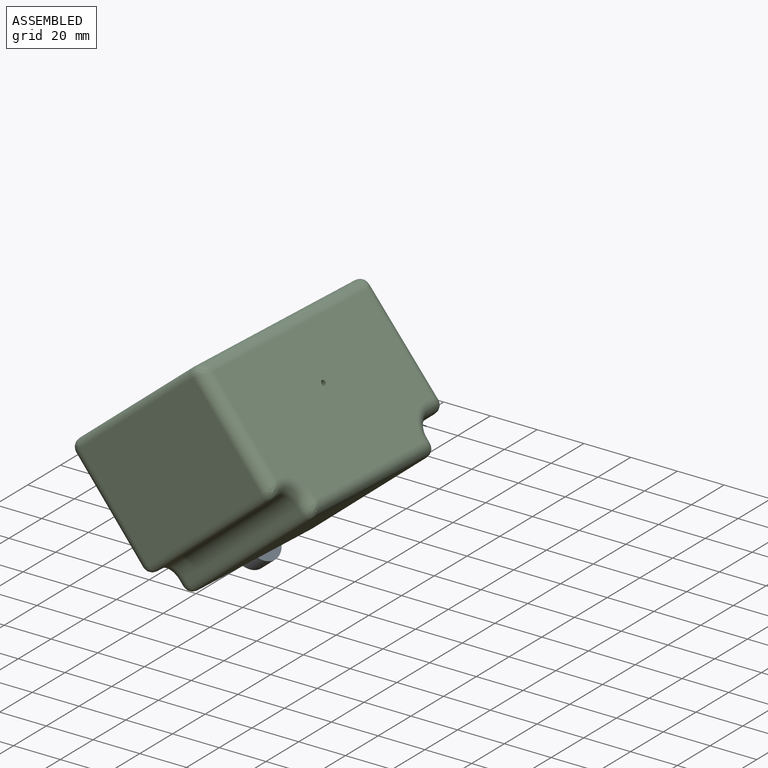
[diagram: assembled view]
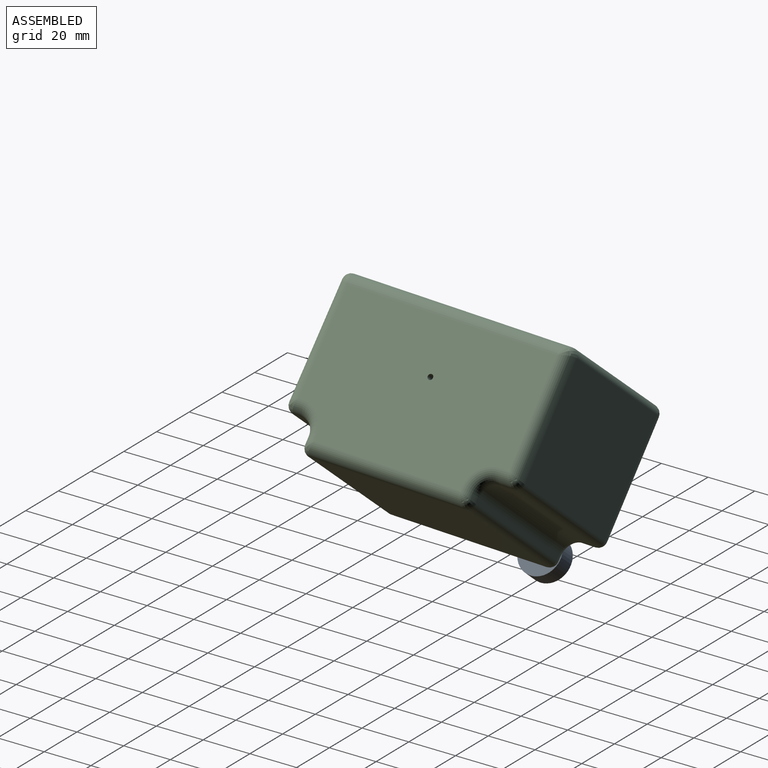
[diagram: assembled view, second angle]
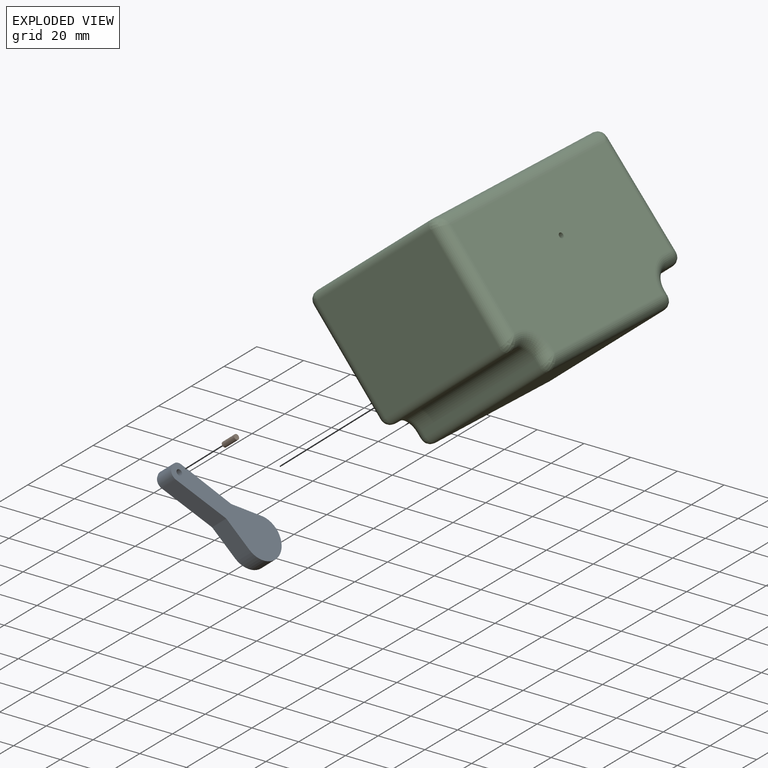
[diagram: exploded view]
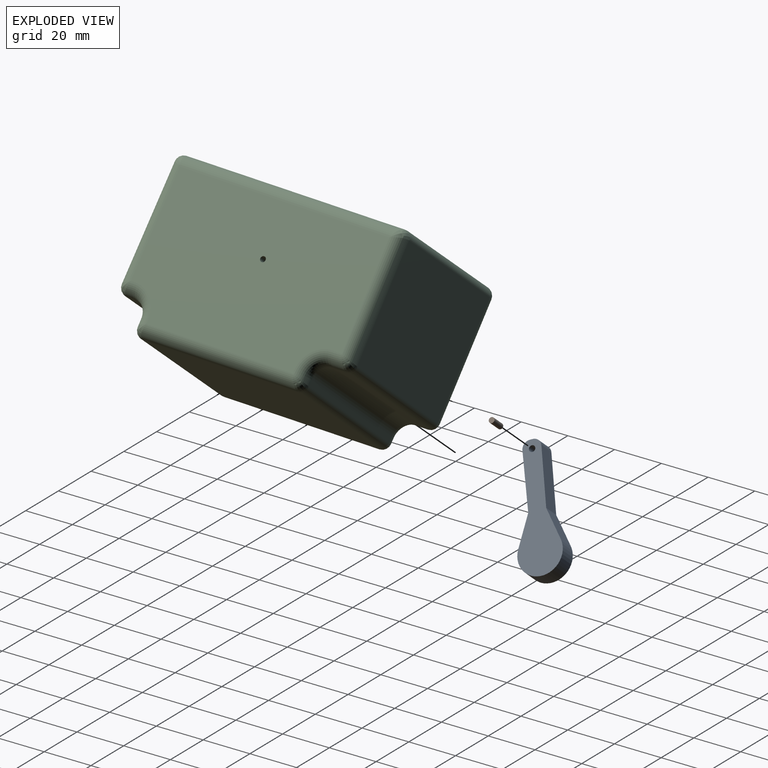
[diagram: exploded view, second angle]
ASSEMBLY  parts=3 mates=3
PART A: 11 faces, bbox 7.9x43.2x37.7 mm
  f0: plane 12.39x7.89mm, normal (0,-0.86,0.51), area 114mm2, adj f1,f7,f9,f10
  f1: plane 18.43x15.1mm, normal (0,-0.63,0.77), area 188mm2, adj f0,f2,f9,f10
  f2: cylinder r=3.17mm len=7.89mm, axis (-1,0,0), area 39.8mm2, adj f1,f3,f9,f10
  f3: plane 7.89x0.84mm, normal (0,-0.76,-0.65), area 8.7mm2, adj f2,f4,f9,f10
  f4: cylinder r=3.17mm len=7.89mm, axis (-1,0,0), area 39.4mm2, adj f3,f5,f9,f10
  f5: plane 18.22x15.42mm, normal (0,0.65,-0.76), area 188.4mm2, adj f4,f6,f9,f10
  f6: plane 12.87x7.89mm, normal (0,0.31,-0.95), area 106.8mm2, adj f5,f7,f9,f10
  f7: cylinder r=8.9mm len=17.37mm, axis (-1,0,0), area 265.8mm2, adj f0,f6,f9,f10
  f8: cylinder r=1.27mm len=7.89mm, axis (-1,0,0), area 63mm2, adj f9,f10
  f9: plane 43.19x37.73mm, normal (1,0,0), area 518.2mm2, adj f0,f1,f2,f3,f4,f5,f6,f7
  f10: plane 43.19x37.73mm, normal (-1,0,0), area 518.2mm2, adj f0,f1,f2,f3,f4,f5,f6,f7
PART B: 3 faces, bbox 6.9x2.3x2.3 mm
  f0: cylinder r=1.14mm len=6.86mm, axis (-1,0,0), area 49.3mm2, adj f1,f2
  f1: plane 2.29x2.29mm, normal (1,0,0), area 4.1mm2, adj f0
  f2: plane 2.29x2.29mm, normal (-1,0,0), area 4.1mm2, adj f0
PART C: 51 faces, bbox 73.5x66.8x102.2 mm
  f0: cylinder r=3.17mm len=63.37mm, axis (-1,0,0), area 316mm2, adj f1,f16,f33,f49
  f1: plane 67.5x63.37mm, normal (0,1,0), area 4277.1mm2, adj f0,f2,f31,f47
  f2: cylinder r=3.17mm len=63.37mm, axis (-1,0,0), area 316mm2, adj f1,f3,f29,f45
  f3: plane 63.37x2.61mm, normal (0,0,1), area 165.4mm2, adj f2,f4,f27,f43
  f4: cylinder r=6.35mm len=63.37mm, axis (-1,0,0), area 632mm2, adj f3,f5,f25,f41
  f5: plane 63.37x5.73mm, normal (0,1,0), area 363.2mm2, adj f4,f6,f23,f39
  f6: cylinder r=3.17mm len=63.37mm, axis (-1,0,0), area 319.5mm2, adj f5,f7,f21,f37
  f7: plane 63.37x48.27mm, normal (0,-0.02,1), area 3058.9mm2, adj f6,f8,f19,f35
  f8: cylinder r=3.17mm len=63.37mm, axis (-1,0,0), area 312.6mm2, adj f7,f9,f20,f36
  f9: plane 95x63.37mm, normal (0,-1,0), area 6019.9mm2, adj f8,f10,f22,f38
  f10: cylinder r=3.17mm len=63.37mm, axis (-1,0,0), area 316mm2, adj f9,f11,f24,f40
  f11: plane 63.37x47.8mm, normal (0,0,-1), area 3028.9mm2, adj f10,f12,f26,f42
  f12: cylinder r=3.17mm len=63.37mm, axis (-1,0,0), area 316mm2, adj f11,f13,f28,f44
  f13: plane 63.37x3.55mm, normal (0,1,0), area 224.7mm2, adj f12,f14,f30,f46
  f14: cylinder r=6.35mm len=63.37mm, axis (-1,0,0), area 632mm2, adj f13,f16,f32,f48
  f15: cylinder r=1.14mm len=73.53mm, axis (-1,0,0), area 528mm2, adj f17,f18
  f16: plane 63.37x3.08mm, normal (0,0,-1), area 194.9mm2, adj f0,f14,f34,f50
  f17: plane 91.98x56.59mm, normal (1,0,0), area 4891.2mm2, adj f15,f35,f38,f39,f41,f42,f43,f46
  f18: plane 91.98x56.59mm, normal (-1,0,0), area 4891.2mm2, adj f15,f19,f22,f23,f25,f26,f27,f30
  f19: cylinder r=5.08mm len=48.35mm, axis (0,-1,-0.02), area 374.2mm2, adj f7,f18,f20,f21
  f20: bspline ~6.13x5.08mm, area 26mm2, adj f8,f19,f22
  f21: bspline ~6.16x5.17mm, area 26.6mm2, adj f6,f19,f23
  f22: cylinder r=5.08mm len=95mm, axis (0,0,-1), area 747.1mm2, adj f9,f18,f20,f24
  f23: cylinder r=5.08mm len=5.73mm, axis (0,0,1), area 40.1mm2, adj f5,f18,f21,f25
  f24: bspline ~6.15x5.08mm, area 26.3mm2, adj f10,f22,f26
  f25: torus R=11.43mm, axis (1,0,0), area 102.7mm2, adj f4,f18,f23,f27
  f26: cylinder r=5.08mm len=47.8mm, axis (0,1,0), area 370.4mm2, adj f11,f18,f24,f28
  f27: cylinder r=5.08mm len=5.08mm, axis (0,-1,0), area 15.3mm2, adj f3,f18,f25,f29
  f28: bspline ~6.15x5.08mm, area 26.3mm2, adj f12,f26,f30
  f29: bspline ~6.15x5.08mm, area 26.3mm2, adj f2,f27,f31
  f30: cylinder r=5.08mm len=5.08mm, axis (0,0,1), area 22.8mm2, adj f13,f18,f28,f32
  f31: cylinder r=5.08mm len=67.5mm, axis (0,0,1), area 527.6mm2, adj f1,f18,f29,f33
  f32: torus R=11.43mm, axis (1,0,0), area 102.7mm2, adj f14,f18,f30,f34
  f33: bspline ~6.15x5.08mm, area 26.3mm2, adj f0,f31,f34
  f34: cylinder r=5.08mm len=5.08mm, axis (0,1,0), area 19mm2, adj f16,f18,f32,f33
  f35: cylinder r=5.08mm len=48.35mm, axis (0,1,0.02), area 374.2mm2, adj f7,f17,f36,f37
  f36: bspline ~6.13x5.08mm, area 26mm2, adj f8,f35,f38
  f37: bspline ~6.16x5.17mm, area 26.6mm2, adj f6,f35,f39
  f38: cylinder r=5.08mm len=95mm, axis (0,0,1), area 747.1mm2, adj f9,f17,f36,f40
  f39: cylinder r=5.08mm len=5.73mm, axis (0,0,-1), area 40.1mm2, adj f5,f17,f37,f41
  f40: bspline ~6.15x5.08mm, area 26.3mm2, adj f10,f38,f42
  f41: torus R=11.43mm, axis (1,0,0), area 102.7mm2, adj f4,f17,f39,f43
  f42: cylinder r=5.08mm len=47.8mm, axis (0,-1,0), area 370.4mm2, adj f11,f17,f40,f44
  f43: cylinder r=5.08mm len=5.08mm, axis (0,1,0), area 15.3mm2, adj f3,f17,f41,f45
  f44: bspline ~6.15x5.08mm, area 26.3mm2, adj f12,f42,f46
  f45: bspline ~6.15x5.08mm, area 26.3mm2, adj f2,f43,f47
  f46: cylinder r=5.08mm len=5.08mm, axis (0,0,-1), area 22.8mm2, adj f13,f17,f44,f48
  f47: cylinder r=5.08mm len=67.5mm, axis (0,0,-1), area 527.6mm2, adj f1,f17,f45,f49
  f48: torus R=11.43mm, axis (1,0,0), area 102.7mm2, adj f14,f17,f46,f50
  f49: bspline ~6.15x5.08mm, area 26.3mm2, adj f0,f47,f50
  f50: cylinder r=5.08mm len=5.08mm, axis (0,-1,0), area 19mm2, adj f16,f17,f48,f49
PLACE A rot(axis=(-0.91,-0.27,-0.33),106.1deg) t=(-4985.94,-3206.84,-1448.53)mm
PLACE B rot(axis=(-0.89,-0.31,-0.32),98.3deg) t=(-4981.57,-3250.48,-1441.62)mm
PLACE C rot(axis=(-0.89,-0.31,-0.32),98.3deg) t=(-4933.46,-3203.1,-1488.72)mm
MATE cylindrical A.f4 <-> A.f4  axis (-0.77,0,-0.64) through (-4951.7,-3214.12,-1477.52)mm
MATE fastened B.f0 <-> C.f15  axis (0.77,0,0.64) through (-4946.4,-3213.44,-1473.15)mm
MATE revolute A.f8 <-> B.f0  axis (0.77,0,0.64) through (-4951.68,-3213.42,-1477.53)mm
